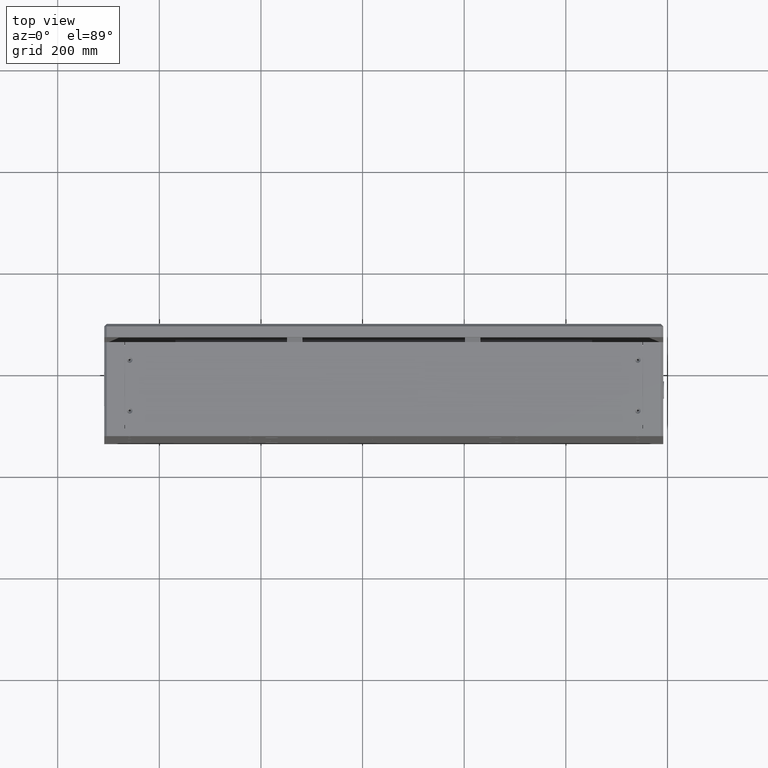
[diagram: clean part render]
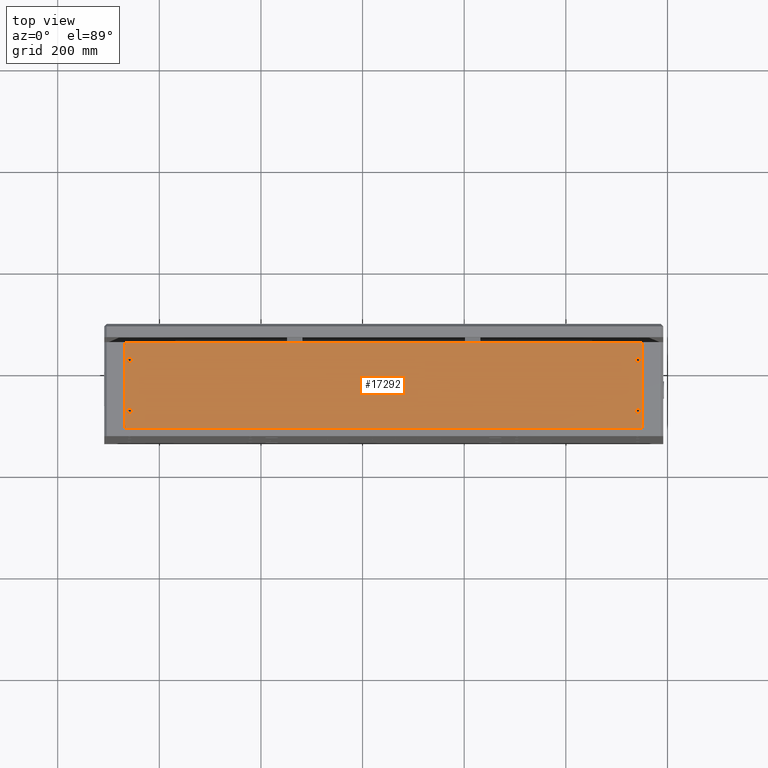
[diagram: same view with one face highlighted and labeled with its STEP entity id]
A machine part, top view. The second image highlights one B-rep face of the part: STEP entity #17292.
In plain terms, the highlighted planar face has unit normal (0, 0, -1).
Its self-contained STEP definition (entity closure, byte-faithful):
#2487 = EDGE_LOOP ( 'NONE', ( #35934 ) ) ;
#4021 = EDGE_CURVE ( 'NONE', #33664, #33664, #49676, .T. ) ;
#4030 = DIRECTION ( 'NONE',  ( -1.000000000000000000, 0.000000000000000000, -0.000000000000000000 ) ) ;
#4062 = EDGE_CURVE ( 'NONE', #42360, #42360, #25983, .T. ) ;
#4452 = EDGE_CURVE ( 'NONE', #26596, #16948, #41819, .T. ) ;
#4780 = CARTESIAN_POINT ( 'NONE',  ( -667.8695244093509018, 79.96507464035521195, 1299.394235292442318 ) ) ;
#6140 = VERTEX_POINT ( 'NONE', #29422 ) ;
#6460 = EDGE_CURVE ( 'NONE', #25946, #26596, #50074, .T. ) ;
#6630 = ORIENTED_EDGE ( 'NONE', *, *, #4062, .F. ) ;
#7791 = AXIS2_PLACEMENT_3D ( 'NONE', #36503, #12700, #20624 ) ;
#8375 = DIRECTION ( 'NONE',  ( 1.000000000000000000, 0.000000000000000000, 0.000000000000000000 ) ) ;
#8705 = ORIENTED_EDGE ( 'NONE', *, *, #4021, .F. ) ;
#9691 = VECTOR ( 'NONE', #26710, 1000.000000000000000 ) ;
#10555 = CIRCLE ( 'NONE', #46518, 5.600000000018257040 ) ;
#11416 = DIRECTION ( 'NONE',  ( 1.000000000000000000, -0.000000000000000000, 0.000000000000000000 ) ) ;
#12649 = CARTESIAN_POINT ( 'NONE',  ( 347.2304755906671971, 214.9650746403553399, 1299.394235292459143 ) ) ;
#12690 = VECTOR ( 'NONE', #40765, 1000.000000000000000 ) ;
#12700 = DIRECTION ( 'NONE',  ( 0.000000000000000000, 7.744301232014381281E-17, 1.000000000000000000 ) ) ;
#12910 = EDGE_CURVE ( 'NONE', #6140, #6140, #29862, .T. ) ;
#14194 = CARTESIAN_POINT ( 'NONE',  ( 351.1304755906490414, 79.96507464035521195, 1299.394235292442318 ) ) ;
#14706 = DIRECTION ( 'NONE',  ( 1.000000000000000000, 0.000000000000000000, 0.000000000000000000 ) ) ;
#15007 = CARTESIAN_POINT ( 'NONE',  ( -667.8695244093509018, 249.9650746403552262, 1299.394235292442318 ) ) ;
#15357 = AXIS2_PLACEMENT_3D ( 'NONE', #32433, #25023, #19897 ) ;
#16316 = LINE ( 'NONE', #4780, #29166 ) ;
#16948 = VERTEX_POINT ( 'NONE', #14194 ) ;
#17095 = FACE_BOUND ( 'NONE', #39874, .T. ) ;
#17292 = ADVANCED_FACE ( 'NONE', ( #20412, #17095, #32700, #48321, #22679 ), #33961, .F. ) ;
#19897 = DIRECTION ( 'NONE',  ( 0.000000000000000000, -1.000000000000000000, 0.000000000000000000 ) ) ;
#20412 = FACE_OUTER_BOUND ( 'NONE', #41116, .T. ) ;
#20624 = DIRECTION ( 'NONE',  ( 0.000000000000000000, -1.000000000000000000, 0.000000000000000000 ) ) ;
#21009 = AXIS2_PLACEMENT_3D ( 'NONE', #25797, #41899, #49580 ) ;
#22679 = FACE_BOUND ( 'NONE', #39373, .T. ) ;
#23788 = ORIENTED_EDGE ( 'NONE', *, *, #6460, .F. ) ;
#23938 = ORIENTED_EDGE ( 'NONE', *, *, #46719, .F. ) ;
#23958 = EDGE_CURVE ( 'NONE', #47723, #47723, #10555, .T. ) ;
#24039 = ORIENTED_EDGE ( 'NONE', *, *, #23958, .F. ) ;
#25023 = DIRECTION ( 'NONE',  ( 0.000000000000000000, 7.744301232014377583E-17, 1.000000000000000000 ) ) ;
#25797 = CARTESIAN_POINT ( 'NONE',  ( -667.8695244093509018, 79.96507464035521195, 1299.394235292442318 ) ) ;
#25946 = VERTEX_POINT ( 'NONE', #39972 ) ;
#25983 = CIRCLE ( 'NONE', #29258, 5.600000000018257040 ) ;
#26596 = VERTEX_POINT ( 'NONE', #26711 ) ;
#26710 = DIRECTION ( 'NONE',  ( -0.000000000000000000, -1.000000000000000000, -0.000000000000000000 ) ) ;
#26711 = CARTESIAN_POINT ( 'NONE',  ( 351.1304755906490414, 249.9650746403552262, 1299.394235292442318 ) ) ;
#27817 = VECTOR ( 'NONE', #11416, 1000.000000000000000 ) ;
#27825 = CARTESIAN_POINT ( 'NONE',  ( 341.6304755906489845, 114.9650746403553399, 1299.394235292459143 ) ) ;
#29166 = VECTOR ( 'NONE', #4030, 1000.000000000000000 ) ;
#29258 = AXIS2_PLACEMENT_3D ( 'NONE', #27825, #43452, #8375 ) ;
#29422 = CARTESIAN_POINT ( 'NONE',  ( -658.3695244093507881, 109.3650746403371841, 1299.394235292459143 ) ) ;
#29862 = CIRCLE ( 'NONE', #7791, 5.600000000018034996 ) ;
#30213 = ORIENTED_EDGE ( 'NONE', *, *, #4452, .F. ) ;
#32433 = CARTESIAN_POINT ( 'NONE',  ( -658.3695244093507881, 214.9650746403552262, 1299.394235292459143 ) ) ;
#32700 = FACE_BOUND ( 'NONE', #42600, .T. ) ;
#33078 = LINE ( 'NONE', #37180, #12690 ) ;
#33664 = VERTEX_POINT ( 'NONE', #42102 ) ;
#33961 = PLANE ( 'NONE',  #21009 ) ;
#34333 = CARTESIAN_POINT ( 'NONE',  ( -667.8695244093509018, 79.96507464035521195, 1299.394235292442318 ) ) ;
#35934 = ORIENTED_EDGE ( 'NONE', *, *, #12910, .F. ) ;
#36503 = CARTESIAN_POINT ( 'NONE',  ( -658.3695244093507881, 114.9650746403552120, 1299.394235292459143 ) ) ;
#37180 = CARTESIAN_POINT ( 'NONE',  ( -667.8695244093509018, 79.96507464035521195, 1299.394235292442318 ) ) ;
#38068 = ORIENTED_EDGE ( 'NONE', *, *, #48886, .F. ) ;
#39373 = EDGE_LOOP ( 'NONE', ( #8705 ) ) ;
#39874 = EDGE_LOOP ( 'NONE', ( #6630 ) ) ;
#39972 = CARTESIAN_POINT ( 'NONE',  ( -667.8695244093509018, 249.9650746403552262, 1299.394235292442318 ) ) ;
#40765 = DIRECTION ( 'NONE',  ( 0.000000000000000000, 1.000000000000000000, 0.000000000000000000 ) ) ;
#41116 = EDGE_LOOP ( 'NONE', ( #38068, #30213, #23788, #23938 ) ) ;
#41609 = DIRECTION ( 'NONE',  ( 0.000000000000000000, -0.000000000000000000, 1.000000000000000000 ) ) ;
#41819 = LINE ( 'NONE', #46173, #9691 ) ;
#41899 = DIRECTION ( 'NONE',  ( 0.000000000000000000, 0.000000000000000000, -1.000000000000000000 ) ) ;
#42102 = CARTESIAN_POINT ( 'NONE',  ( -658.3695244093507881, 209.3650746403371841, 1299.394235292459143 ) ) ;
#42360 = VERTEX_POINT ( 'NONE', #49769 ) ;
#42600 = EDGE_LOOP ( 'NONE', ( #24039 ) ) ;
#43452 = DIRECTION ( 'NONE',  ( 0.000000000000000000, -0.000000000000000000, 1.000000000000000000 ) ) ;
#45951 = CARTESIAN_POINT ( 'NONE',  ( 341.6304755906489845, 214.9650746403553399, 1299.394235292459143 ) ) ;
#46173 = CARTESIAN_POINT ( 'NONE',  ( 351.1304755906490414, 79.96507464035521195, 1299.394235292442318 ) ) ;
#46518 = AXIS2_PLACEMENT_3D ( 'NONE', #45951, #41609, #14706 ) ;
#46719 = EDGE_CURVE ( 'NONE', #47386, #25946, #33078, .T. ) ;
#47386 = VERTEX_POINT ( 'NONE', #34333 ) ;
#47723 = VERTEX_POINT ( 'NONE', #12649 ) ;
#48321 = FACE_BOUND ( 'NONE', #2487, .T. ) ;
#48886 = EDGE_CURVE ( 'NONE', #16948, #47386, #16316, .T. ) ;
#49580 = DIRECTION ( 'NONE',  ( -1.000000000000000000, 0.000000000000000000, -0.000000000000000000 ) ) ;
#49676 = CIRCLE ( 'NONE', #15357, 5.600000000018034996 ) ;
#49769 = CARTESIAN_POINT ( 'NONE',  ( 347.2304755906671971, 114.9650746403553399, 1299.394235292459143 ) ) ;
#50074 = LINE ( 'NONE', #15007, #27817 ) ;